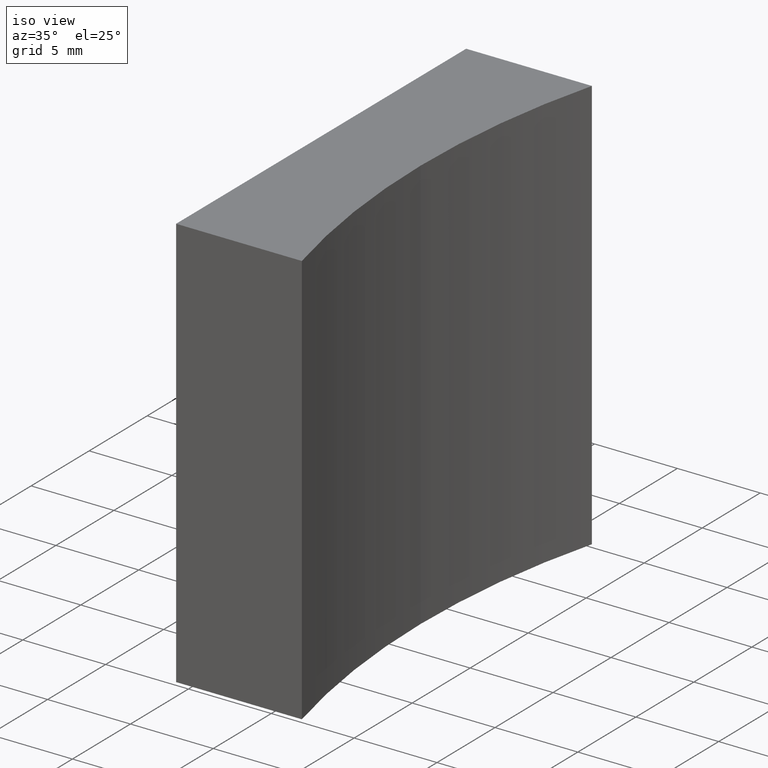
[diagram: clean part render]
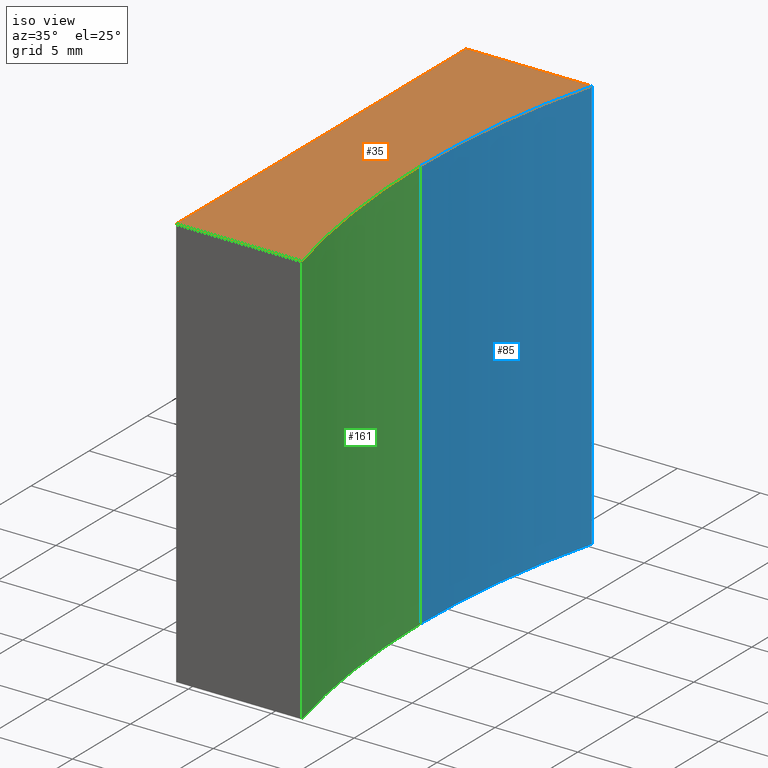
[diagram: same view with three faces highlighted in distinct colors, each labeled with its STEP entity id]
A machine part, iso view with three faces highlighted in distinct colors.
Their STEP definitions:

[orange] entity #35 — the highlighted planar face has unit normal (0, 0, 1).
#5 = ORIENTED_EDGE ( 'NONE', *, *, #154, .T. ) ;
#6 = CIRCLE ( 'NONE', #75, 49.99999999999998600 ) ;
#7 = VERTEX_POINT ( 'NONE', #140 ) ;
#13 = CARTESIAN_POINT ( 'NONE',  ( 284.7071356312820900, 54.35792926776707600, 25.00000000000000000 ) ) ;
#19 = VECTOR ( 'NONE', #156, 1000.000000000000000 ) ;
#24 = LINE ( 'NONE', #198, #229 ) ;
#28 = CARTESIAN_POINT ( 'NONE',  ( 292.2948438035605200, 54.35792926776710500, 25.00000000000000000 ) ) ;
#35 = ADVANCED_FACE ( 'NONE', ( #153 ), #176, .T. ) ;
#40 = EDGE_CURVE ( 'NONE', #189, #86, #168, .T. ) ;
#43 = EDGE_CURVE ( 'NONE', #205, #7, #222, .T. ) ;
#46 = DIRECTION ( 'NONE',  ( -0.0000000000000000000, -1.000000000000000000, -0.0000000000000000000 ) ) ;
#47 = EDGE_CURVE ( 'NONE', #86, #151, #6, .T. ) ;
#65 = DIRECTION ( 'NONE',  ( 1.000000000000000000, 0.0000000000000000000, 0.0000000000000000000 ) ) ;
#75 = AXIS2_PLACEMENT_3D ( 'NONE', #80, #96, #65 ) ;
#80 = CARTESIAN_POINT ( 'NONE',  ( 340.7071356311532200, 66.85792926776700500, 25.00000000000000000 ) ) ;
#81 = DIRECTION ( 'NONE',  ( 1.000000000000000000, 0.0000000000000000000, 0.0000000000000000000 ) ) ;
#83 = ORIENTED_EDGE ( 'NONE', *, *, #40, .T. ) ;
#86 = VERTEX_POINT ( 'NONE', #116 ) ;
#87 = CARTESIAN_POINT ( 'NONE',  ( 340.7071356311532200, 66.85792926776700500, 25.00000000000000000 ) ) ;
#88 = AXIS2_PLACEMENT_3D ( 'NONE', #164, #158, #236 ) ;
#91 = ORIENTED_EDGE ( 'NONE', *, *, #43, .T. ) ;
#96 = DIRECTION ( 'NONE',  ( -0.0000000000000000000, -0.0000000000000000000, -1.000000000000000000 ) ) ;
#97 = DIRECTION ( 'NONE',  ( -0.0000000000000000000, -0.0000000000000000000, -1.000000000000000000 ) ) ;
#106 = CARTESIAN_POINT ( 'NONE',  ( 292.2948438035605800, 79.35792926776709100, 25.00000000000000000 ) ) ;
#113 = VECTOR ( 'NONE', #172, 1000.000000000000000 ) ;
#116 = CARTESIAN_POINT ( 'NONE',  ( 292.2948438035605200, 54.35792926776711200, 25.00000000000000000 ) ) ;
#117 = AXIS2_PLACEMENT_3D ( 'NONE', #87, #97, #81 ) ;
#129 = ORIENTED_EDGE ( 'NONE', *, *, #139, .T. ) ;
#139 = EDGE_CURVE ( 'NONE', #7, #189, #24, .T. ) ;
#140 = CARTESIAN_POINT ( 'NONE',  ( 284.7071356312820900, 79.35792926776707600, 25.00000000000000000 ) ) ;
#151 = VERTEX_POINT ( 'NONE', #237 ) ;
#153 = FACE_OUTER_BOUND ( 'NONE', #170, .T. ) ;
#154 = EDGE_CURVE ( 'NONE', #151, #205, #184, .T. ) ;
#156 = DIRECTION ( 'NONE',  ( -1.000000000000000000, -1.828982809132883200E-015, -0.0000000000000000000 ) ) ;
#158 = DIRECTION ( 'NONE',  ( 0.0000000000000000000, 0.0000000000000000000, 1.000000000000000000 ) ) ;
#164 = CARTESIAN_POINT ( 'NONE',  ( 340.7071356311532200, 66.85792926776700500, 25.00000000000000000 ) ) ;
#165 = ORIENTED_EDGE ( 'NONE', *, *, #47, .T. ) ;
#168 = LINE ( 'NONE', #28, #113 ) ;
#170 = EDGE_LOOP ( 'NONE', ( #129, #83, #165, #5, #91 ) ) ;
#172 = DIRECTION ( 'NONE',  ( 1.000000000000000000, 3.657965618265793200E-015, -0.0000000000000000000 ) ) ;
#176 = PLANE ( 'NONE',  #88 ) ;
#184 = CIRCLE ( 'NONE', #117, 49.99999999999998600 ) ;
#189 = VERTEX_POINT ( 'NONE', #13 ) ;
#190 = CARTESIAN_POINT ( 'NONE',  ( 284.7071356312820900, 79.35792926776707600, 25.00000000000000000 ) ) ;
#198 = CARTESIAN_POINT ( 'NONE',  ( 284.7071356312820900, 54.35792926776707600, 25.00000000000000000 ) ) ;
#205 = VERTEX_POINT ( 'NONE', #106 ) ;
#222 = LINE ( 'NONE', #190, #19 ) ;
#229 = VECTOR ( 'NONE', #46, 1000.000000000000000 ) ;
#236 = DIRECTION ( 'NONE',  ( 1.000000000000000000, 0.0000000000000000000, -0.0000000000000000000 ) ) ;
#237 = CARTESIAN_POINT ( 'NONE',  ( 290.7071356311532200, 66.85792926776700500, 25.00000000000000000 ) ) ;

[blue] entity #85 — the highlighted cylindrical surface (partial cylindrical patch) has radius 50 mm, axis along (-0, -0, -1).
#2 = CIRCLE ( 'NONE', #221, 49.99999999999998600 ) ;
#16 = VECTOR ( 'NONE', #34, 1000.000000000000000 ) ;
#25 = LINE ( 'NONE', #100, #16 ) ;
#29 = DIRECTION ( 'NONE',  ( 1.000000000000000000, 0.0000000000000000000, 0.0000000000000000000 ) ) ;
#34 = DIRECTION ( 'NONE',  ( -0.0000000000000000000, -0.0000000000000000000, -1.000000000000000000 ) ) ;
#54 = AXIS2_PLACEMENT_3D ( 'NONE', #193, #214, #216 ) ;
#55 = ORIENTED_EDGE ( 'NONE', *, *, #163, .T. ) ;
#57 = EDGE_LOOP ( 'NONE', ( #130, #55, #224, #227 ) ) ;
#64 = CARTESIAN_POINT ( 'NONE',  ( 290.7071356311532200, 66.85792926776700500, 0.0000000000000000000 ) ) ;
#81 = DIRECTION ( 'NONE',  ( 1.000000000000000000, 0.0000000000000000000, 0.0000000000000000000 ) ) ;
#82 = VERTEX_POINT ( 'NONE', #64 ) ;
#84 = CARTESIAN_POINT ( 'NONE',  ( 340.7071356311532200, 66.85792926776700500, 0.0000000000000000000 ) ) ;
#85 = ADVANCED_FACE ( 'NONE', ( #200 ), #148, .F. ) ;
#87 = CARTESIAN_POINT ( 'NONE',  ( 340.7071356311532200, 66.85792926776700500, 25.00000000000000000 ) ) ;
#93 = LINE ( 'NONE', #166, #235 ) ;
#97 = DIRECTION ( 'NONE',  ( -0.0000000000000000000, -0.0000000000000000000, -1.000000000000000000 ) ) ;
#100 = CARTESIAN_POINT ( 'NONE',  ( 290.7071356311532200, 66.85792926776700500, 25.00000000000000000 ) ) ;
#106 = CARTESIAN_POINT ( 'NONE',  ( 292.2948438035605800, 79.35792926776709100, 25.00000000000000000 ) ) ;
#117 = AXIS2_PLACEMENT_3D ( 'NONE', #87, #97, #81 ) ;
#125 = DIRECTION ( 'NONE',  ( -0.0000000000000000000, -0.0000000000000000000, -1.000000000000000000 ) ) ;
#128 = EDGE_CURVE ( 'NONE', #82, #136, #2, .T. ) ;
#130 = ORIENTED_EDGE ( 'NONE', *, *, #154, .F. ) ;
#131 = EDGE_CURVE ( 'NONE', #205, #136, #93, .T. ) ;
#136 = VERTEX_POINT ( 'NONE', #178 ) ;
#148 = CYLINDRICAL_SURFACE ( 'NONE', #54, 49.99999999999998600 ) ;
#151 = VERTEX_POINT ( 'NONE', #237 ) ;
#154 = EDGE_CURVE ( 'NONE', #151, #205, #184, .T. ) ;
#163 = EDGE_CURVE ( 'NONE', #151, #82, #25, .T. ) ;
#166 = CARTESIAN_POINT ( 'NONE',  ( 292.2948438035605800, 79.35792926776709100, 25.00000000000000000 ) ) ;
#178 = CARTESIAN_POINT ( 'NONE',  ( 292.2948438035605800, 79.35792926776709100, 0.0000000000000000000 ) ) ;
#184 = CIRCLE ( 'NONE', #117, 49.99999999999998600 ) ;
#193 = CARTESIAN_POINT ( 'NONE',  ( 340.7071356311532200, 66.85792926776700500, 25.00000000000000000 ) ) ;
#200 = FACE_OUTER_BOUND ( 'NONE', #57, .T. ) ;
#205 = VERTEX_POINT ( 'NONE', #106 ) ;
#214 = DIRECTION ( 'NONE',  ( -0.0000000000000000000, -0.0000000000000000000, -1.000000000000000000 ) ) ;
#216 = DIRECTION ( 'NONE',  ( -1.000000000000000000, 0.0000000000000000000, 0.0000000000000000000 ) ) ;
#219 = DIRECTION ( 'NONE',  ( -0.0000000000000000000, -0.0000000000000000000, -1.000000000000000000 ) ) ;
#221 = AXIS2_PLACEMENT_3D ( 'NONE', #84, #219, #29 ) ;
#224 = ORIENTED_EDGE ( 'NONE', *, *, #128, .T. ) ;
#227 = ORIENTED_EDGE ( 'NONE', *, *, #131, .F. ) ;
#235 = VECTOR ( 'NONE', #125, 1000.000000000000000 ) ;
#237 = CARTESIAN_POINT ( 'NONE',  ( 290.7071356311532200, 66.85792926776700500, 25.00000000000000000 ) ) ;

[green] entity #161 — the highlighted cylindrical surface (partial cylindrical patch) has radius 50 mm, axis along (-0, -0, -1).
#6 = CIRCLE ( 'NONE', #75, 49.99999999999998600 ) ;
#16 = VECTOR ( 'NONE', #34, 1000.000000000000000 ) ;
#22 = AXIS2_PLACEMENT_3D ( 'NONE', #196, #182, #143 ) ;
#25 = LINE ( 'NONE', #100, #16 ) ;
#32 = EDGE_CURVE ( 'NONE', #86, #133, #105, .T. ) ;
#33 = VECTOR ( 'NONE', #155, 1000.000000000000000 ) ;
#34 = DIRECTION ( 'NONE',  ( -0.0000000000000000000, -0.0000000000000000000, -1.000000000000000000 ) ) ;
#41 = ORIENTED_EDGE ( 'NONE', *, *, #32, .T. ) ;
#47 = EDGE_CURVE ( 'NONE', #86, #151, #6, .T. ) ;
#50 = DIRECTION ( 'NONE',  ( -0.0000000000000000000, -0.0000000000000000000, -1.000000000000000000 ) ) ;
#61 = CYLINDRICAL_SURFACE ( 'NONE', #22, 49.99999999999998600 ) ;
#64 = CARTESIAN_POINT ( 'NONE',  ( 290.7071356311532200, 66.85792926776700500, 0.0000000000000000000 ) ) ;
#65 = DIRECTION ( 'NONE',  ( 1.000000000000000000, 0.0000000000000000000, 0.0000000000000000000 ) ) ;
#69 = ORIENTED_EDGE ( 'NONE', *, *, #163, .F. ) ;
#75 = AXIS2_PLACEMENT_3D ( 'NONE', #80, #96, #65 ) ;
#77 = FACE_OUTER_BOUND ( 'NONE', #90, .T. ) ;
#80 = CARTESIAN_POINT ( 'NONE',  ( 340.7071356311532200, 66.85792926776700500, 25.00000000000000000 ) ) ;
#82 = VERTEX_POINT ( 'NONE', #64 ) ;
#86 = VERTEX_POINT ( 'NONE', #116 ) ;
#90 = EDGE_LOOP ( 'NONE', ( #69, #226, #41, #110 ) ) ;
#96 = DIRECTION ( 'NONE',  ( -0.0000000000000000000, -0.0000000000000000000, -1.000000000000000000 ) ) ;
#100 = CARTESIAN_POINT ( 'NONE',  ( 290.7071356311532200, 66.85792926776700500, 25.00000000000000000 ) ) ;
#104 = CARTESIAN_POINT ( 'NONE',  ( 292.2948438035605200, 54.35792926776711200, 0.0000000000000000000 ) ) ;
#105 = LINE ( 'NONE', #191, #33 ) ;
#110 = ORIENTED_EDGE ( 'NONE', *, *, #134, .T. ) ;
#116 = CARTESIAN_POINT ( 'NONE',  ( 292.2948438035605200, 54.35792926776711200, 25.00000000000000000 ) ) ;
#120 = DIRECTION ( 'NONE',  ( 1.000000000000000000, 0.0000000000000000000, 0.0000000000000000000 ) ) ;
#132 = AXIS2_PLACEMENT_3D ( 'NONE', #201, #50, #120 ) ;
#133 = VERTEX_POINT ( 'NONE', #104 ) ;
#134 = EDGE_CURVE ( 'NONE', #133, #82, #135, .T. ) ;
#135 = CIRCLE ( 'NONE', #132, 49.99999999999998600 ) ;
#143 = DIRECTION ( 'NONE',  ( -1.000000000000000000, 0.0000000000000000000, 0.0000000000000000000 ) ) ;
#151 = VERTEX_POINT ( 'NONE', #237 ) ;
#155 = DIRECTION ( 'NONE',  ( -0.0000000000000000000, -0.0000000000000000000, -1.000000000000000000 ) ) ;
#161 = ADVANCED_FACE ( 'NONE', ( #77 ), #61, .F. ) ;
#163 = EDGE_CURVE ( 'NONE', #151, #82, #25, .T. ) ;
#182 = DIRECTION ( 'NONE',  ( -0.0000000000000000000, -0.0000000000000000000, -1.000000000000000000 ) ) ;
#191 = CARTESIAN_POINT ( 'NONE',  ( 292.2948438035605200, 54.35792926776711200, 25.00000000000000000 ) ) ;
#196 = CARTESIAN_POINT ( 'NONE',  ( 340.7071356311532200, 66.85792926776700500, 25.00000000000000000 ) ) ;
#201 = CARTESIAN_POINT ( 'NONE',  ( 340.7071356311532200, 66.85792926776700500, 0.0000000000000000000 ) ) ;
#226 = ORIENTED_EDGE ( 'NONE', *, *, #47, .F. ) ;
#237 = CARTESIAN_POINT ( 'NONE',  ( 290.7071356311532200, 66.85792926776700500, 25.00000000000000000 ) ) ;